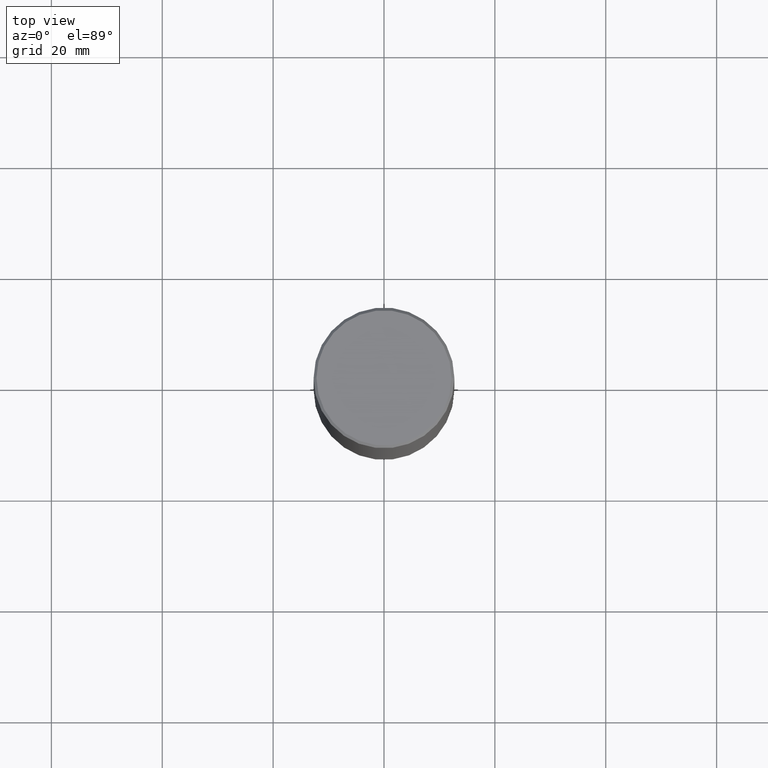
[diagram: clean part render]
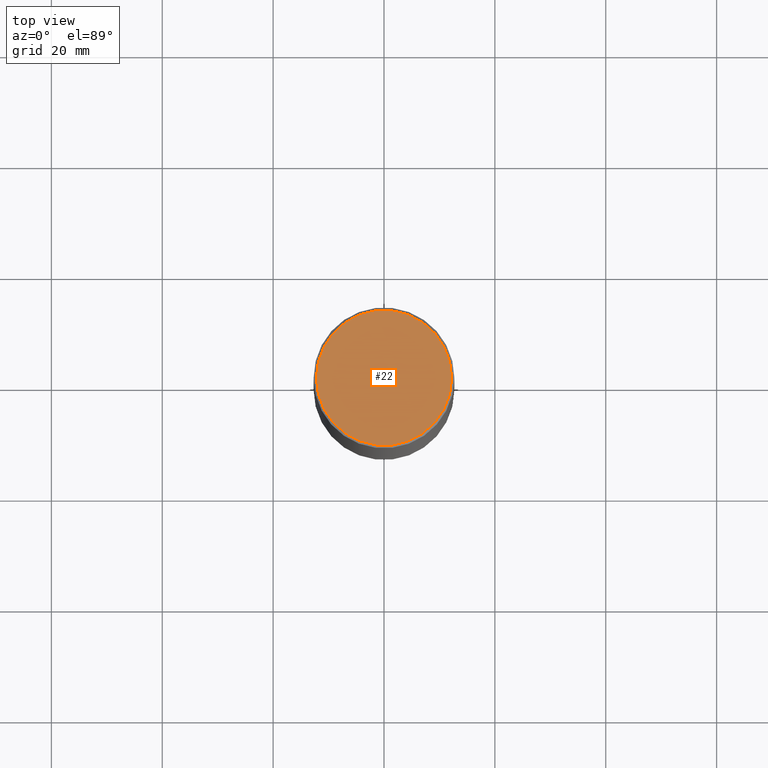
[diagram: same view with one face highlighted and labeled with its STEP entity id]
A machine part, top view. The second image highlights one B-rep face of the part: STEP entity #22.
In plain terms, the highlighted planar face has unit normal (0, -0, -1).
Its self-contained STEP definition (entity closure, byte-faithful):
#3 = ORIENTED_EDGE ( 'NONE', *, *, #271, .T. ) ;
#18 = CIRCLE ( 'NONE', #328, 0.4799999999999988165 ) ;
#22 = ADVANCED_FACE ( 'NONE', ( #218 ), #181, .F. ) ;
#43 = VERTEX_POINT ( 'NONE', #403 ) ;
#59 = ORIENTED_EDGE ( 'NONE', *, *, #396, .T. ) ;
#84 = AXIS2_PLACEMENT_3D ( 'NONE', #355, #323, #286 ) ;
#89 = DIRECTION ( 'NONE',  ( -2.445468806185136597E-29, 3.491481338843145583E-15, 1.000000000000000000 ) ) ;
#131 = DIRECTION ( 'NONE',  ( -2.445468806185136597E-29, 3.491481338843145583E-15, 1.000000000000000000 ) ) ;
#164 = DIRECTION ( 'NONE',  ( 1.000000000000000000, -6.982962677686267499E-15, 4.876431871984425487E-29 ) ) ;
#181 = PLANE ( 'NONE',  #84 ) ;
#189 = DIRECTION ( 'NONE',  ( 1.000000000000000000, -6.982962677686267499E-15, 4.876431871984425487E-29 ) ) ;
#214 = EDGE_LOOP ( 'NONE', ( #3, #59 ) ) ;
#218 = FACE_OUTER_BOUND ( 'NONE', #214, .T. ) ;
#271 = EDGE_CURVE ( 'NONE', #43, #319, #379, .T. ) ;
#286 = DIRECTION ( 'NONE',  ( -1.000000000000000000, 6.982962677686265922E-15, -4.876176775795935793E-29 ) ) ;
#312 = CARTESIAN_POINT ( 'NONE',  ( -4.175405657340879278E-46, 5.961372681521788801E-32, 1.707404996040164512E-17 ) ) ;
#319 = VERTEX_POINT ( 'NONE', #343 ) ;
#323 = DIRECTION ( 'NONE',  ( 2.438088387897960049E-29, -3.491481338843145188E-15, -1.000000000000000000 ) ) ;
#328 = AXIS2_PLACEMENT_3D ( 'NONE', #411, #89, #189 ) ;
#343 = CARTESIAN_POINT ( 'NONE',  ( 0.4799999999999988165, -3.396558832296475394E-15, 1.707404996042524007E-17 ) ) ;
#355 = CARTESIAN_POINT ( 'NONE',  ( 3.351822085289399659E-15, 0.4799999999999988165, -1.667374017664504893E-15 ) ) ;
#379 = CIRCLE ( 'NONE', #429, 0.4799999999999988165 ) ;
#396 = EDGE_CURVE ( 'NONE', #319, #43, #18, .T. ) ;
#403 = CARTESIAN_POINT ( 'NONE',  ( -0.4799999999999988165, 3.386736898677831703E-15, 1.707404996037808406E-17 ) ) ;
#411 = CARTESIAN_POINT ( 'NONE',  ( -4.175405657340879278E-46, 5.961372681521788801E-32, 1.707404996040164512E-17 ) ) ;
#429 = AXIS2_PLACEMENT_3D ( 'NONE', #312, #131, #164 ) ;